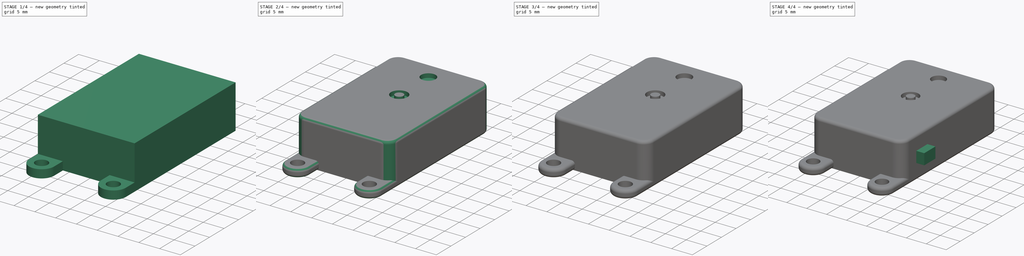
[diagram: build sequence overview — one tinted view per stage of 4, left to right]
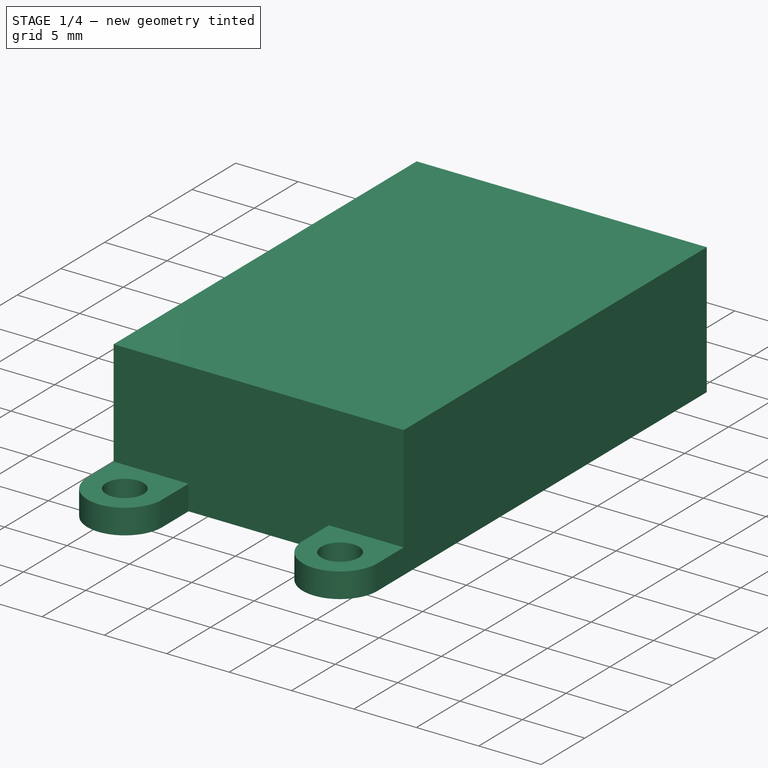
[diagram: stage 1 of 4 — iso view after this stage's code; geometry added in this stage tinted green]
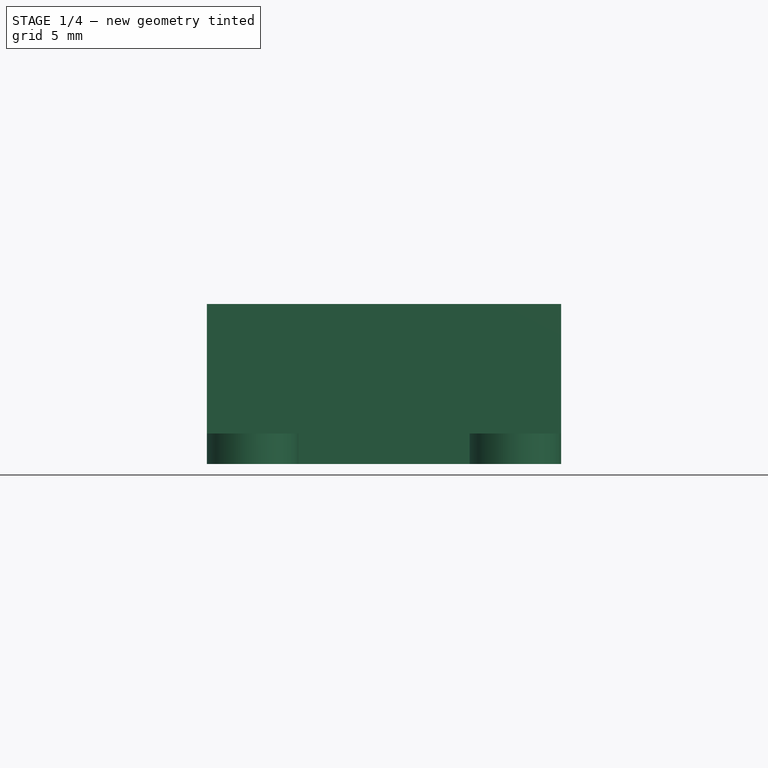
[diagram: stage 1 of 4 — front view after this stage's code; geometry added in this stage tinted green]
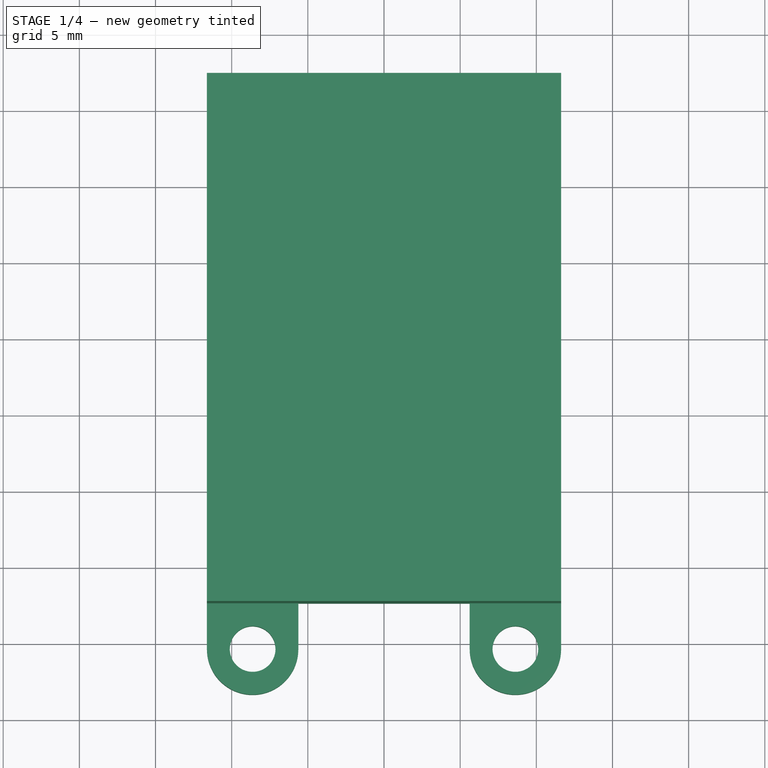
[diagram: stage 1 of 4 — top view after this stage's code; geometry added in this stage tinted green]
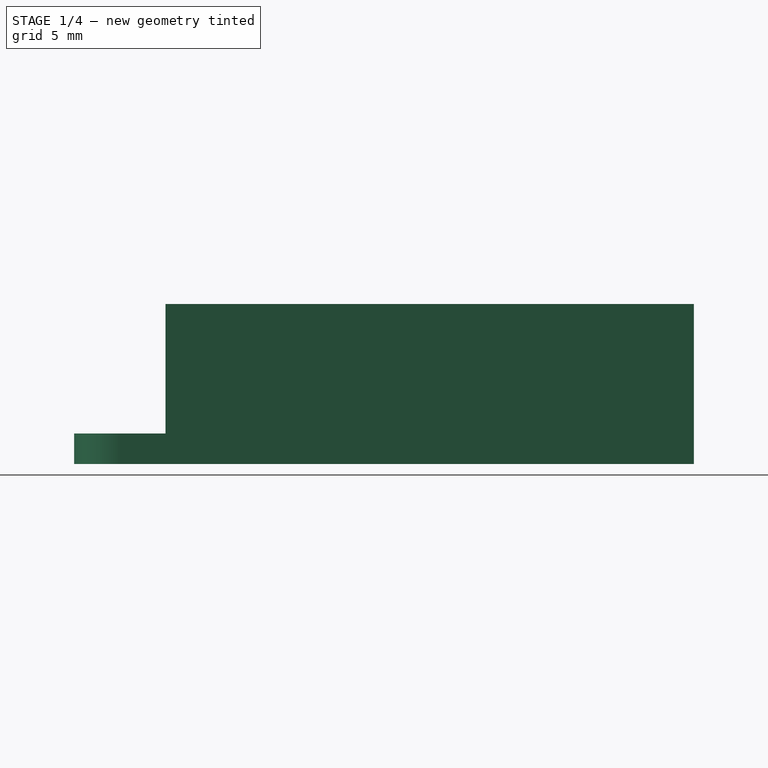
[diagram: stage 1 of 4 — right view after this stage's code; geometry added in this stage tinted green]
FCSTD DOCUMENT  (FreeCAD 1.0R39109 (Git))
Label: sipeed_a010
License: All rights reserved
LicenseURL: http://en.wikipedia.org/wiki/All_rights_reserved
objects: Sketcher::SketchObject×8, PartDesign::Pad×4, PartDesign::Pocket×3, PartDesign::Fillet×2, PartDesign::Mirrored×1, PartDesign::Body×1
note: 46 computed .brp shape members not serialized (recipe doc carries the construction recipe); baked Part::Feature solids carry a one-line shape summary decoded from their .brp

FEATURE [Sketcher::SketchObject] Sketch
  ArcFitTolerance = 1e-06
  AttachmentSupport = -> [XY_Plane]
  FullyConstrained = true
  MakeInternals = false
  MapMode = 5
  sketch-geometry (5):
    g0: LineSegment StartX=-11.625 StartY=17.34 StartZ=0 EndX=-11.625 EndY=-17.34 EndZ=0
    g1: LineSegment StartX=-11.625 StartY=-17.34 StartZ=0 EndX=11.625 EndY=-17.34 EndZ=0
    g2: LineSegment StartX=11.625 StartY=-17.34 StartZ=0 EndX=11.625 EndY=17.34 EndZ=0
    g3: LineSegment StartX=11.625 StartY=17.34 StartZ=0 EndX=-11.625 EndY=17.34 EndZ=0
    g4: GeomPoint [constr] X=0 Y=0 Z=0
  constraints (12):
    c: Coincident(g0,g1)
    c: Coincident(g1,g2)
    c: Coincident(g2,g3)
    c: Coincident(g3,g0)
    c: Vertical(g0)
    c: Vertical(g2)
    c: Horizontal(g1)
    c: Horizontal(g3)
    c: Symmetric(g2,g0,g4)
    c: Coincident(g4,g-1)
    c: DistanceX(g3,g3) = 23.25
    c: DistanceY(g2,g2) = 34.68
FEATURE [PartDesign::Pad] Pad  label="BasePad"
  Direction = (0,0,1)
  Length = 10.5
  Length2 = 10
  Profile = -> Sketch
  ReferenceAxis = -> Sketch [N_Axis]
  Refine = true
  Suppressed = false
  Type = 0
FEATURE [Sketcher::SketchObject] Sketch001
  ArcFitTolerance = 1e-06
  AttachmentSupport = -> [Pad]
  ExternalGeometry = -> [Pad]
  FullyConstrained = true
  MakeInternals = false
  MapMode = 5
  Placement = pos=(0,0,0) rot=(1,0,0;3.14159rad)
  sketch-geometry (11):
    g0: LineSegment StartX=-11.625 StartY=20.34 StartZ=0 EndX=-11.625 EndY=17.34 EndZ=0
    g1: LineSegment StartX=-11.625 StartY=17.34 StartZ=0 EndX=-5.625 EndY=17.34 EndZ=0
    g2: LineSegment StartX=-5.625 StartY=17.34 StartZ=0 EndX=-5.625 EndY=20.34 EndZ=0
    g3: LineSegment StartX=5.625 StartY=20.34 StartZ=0 EndX=5.625 EndY=17.34 EndZ=0
    g4: LineSegment StartX=5.625 StartY=17.34 StartZ=0 EndX=11.625 EndY=17.34 EndZ=0
    g5: LineSegment StartX=11.625 StartY=17.34 StartZ=0 EndX=11.625 EndY=20.34 EndZ=0
    g6: ArcOfCircle CenterX=-8.625 CenterY=20.34 CenterZ=0 NormalX=0 NormalY=0 NormalZ=1 AngleXU=0 Radius=3 StartAngle=6.69e-13 EndAngle=3.14159
    g7: ArcOfCircle CenterX=8.625 CenterY=20.34 CenterZ=0 NormalX=0 NormalY=0 NormalZ=1 AngleXU=0 Radius=3 StartAngle=0 EndAngle=3.14159
    g8: Circle CenterX=-8.625 CenterY=20.34 CenterZ=0 NormalX=0 NormalY=0 NormalZ=1 AngleXU=0 Radius=1.5
    g9: Circle CenterX=8.625 CenterY=20.34 CenterZ=0 NormalX=0 NormalY=0 NormalZ=1 AngleXU=0 Radius=1.5
    g10: GeomPoint X=8.625 Y=23.34 Z=0
  constraints (27):
    c: Coincident(g0,g-3)
    c: Vertical(g0)
    c: Coincident(g0,g1)
    c: PointOnObject(g1,g-3)
    c: Coincident(g1,g2)
    c: Vertical(g2)
    c: PointOnObject(g3,g-3)
    c: Coincident(g3,g4)
    c: Coincident(g4,g-3)
    c: Coincident(g4,g5)
    c: Vertical(g5)
    c: Vertical(g3)
    c: Tangent(g7,g3) = -1.5708
    c: Tangent(g6,g0) = -1.5708
    c: Tangent(g6,g2) = -1.5708
    c: Tangent(g5,g7) = -1.5708
    c: Equal(g7,g6)
    c: Equal(g2,g3)
    c: DistanceX(g6,g7) = 17.25
    c: DistanceY(g1,g6) = 3
    c: Coincident(g8,g6)
    c: Coincident(g9,g7)
    c: Equal(g9,g8)
    c: Radius(g8) = 1.5
    c: PointOnObject(g10,g7)
    c: Vertical(g10,g7)
    c: DistanceY(g4,g10) = 6
FEATURE [PartDesign::Pad] Pad001  label="ExtensionPad"
  BaseFeature = -> Pad
  Direction = (0,0,-1)
  Length = 2
  Length2 = 10
  Profile = -> Sketch001
  ReferenceAxis = -> Sketch001 [N_Axis]
  Refine = true
  Reversed = true
  Suppressed = false
  Type = 0
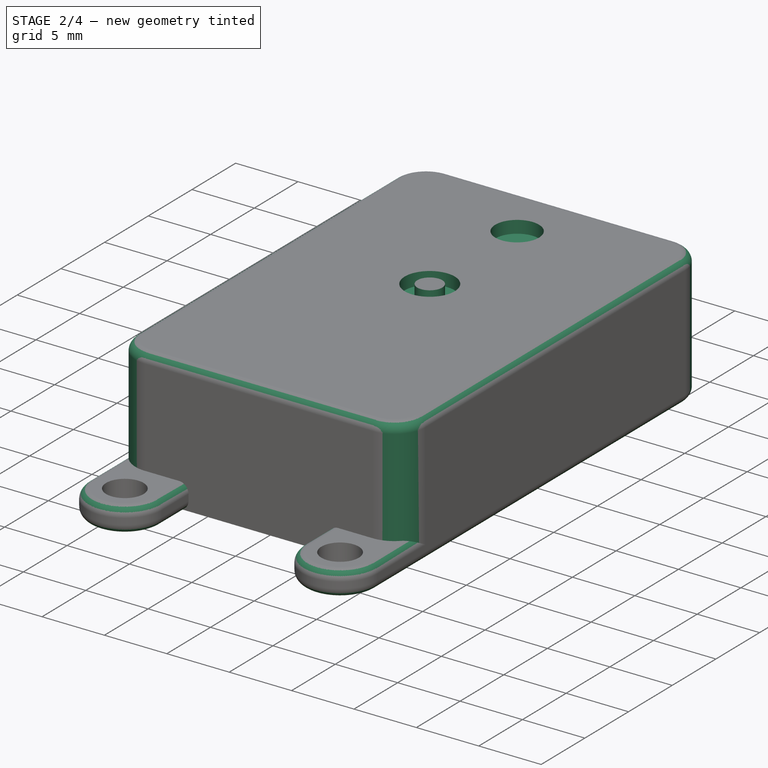
[diagram: stage 2 of 4 — iso view after this stage's code; geometry added in this stage tinted green]
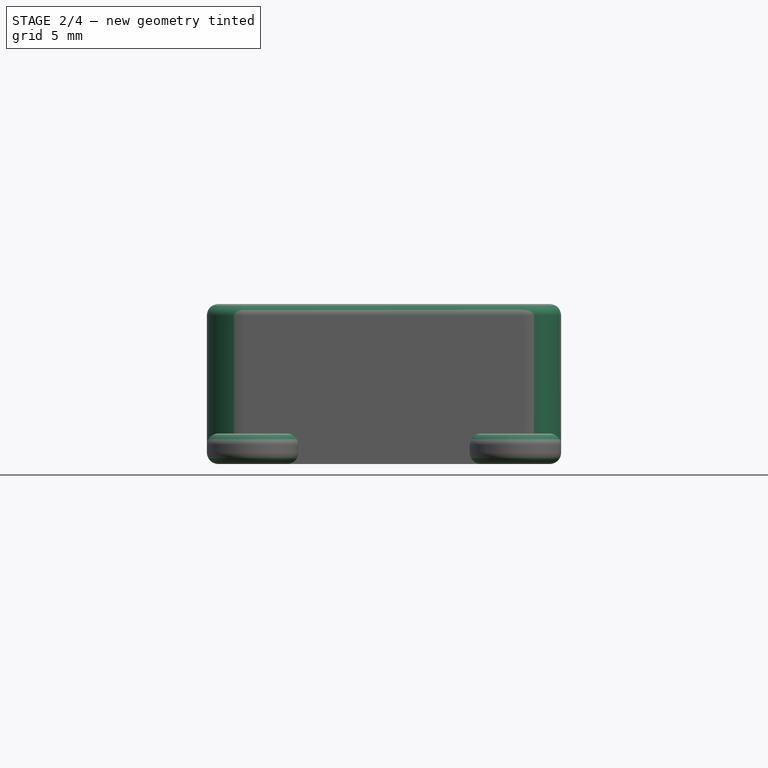
[diagram: stage 2 of 4 — front view after this stage's code; geometry added in this stage tinted green]
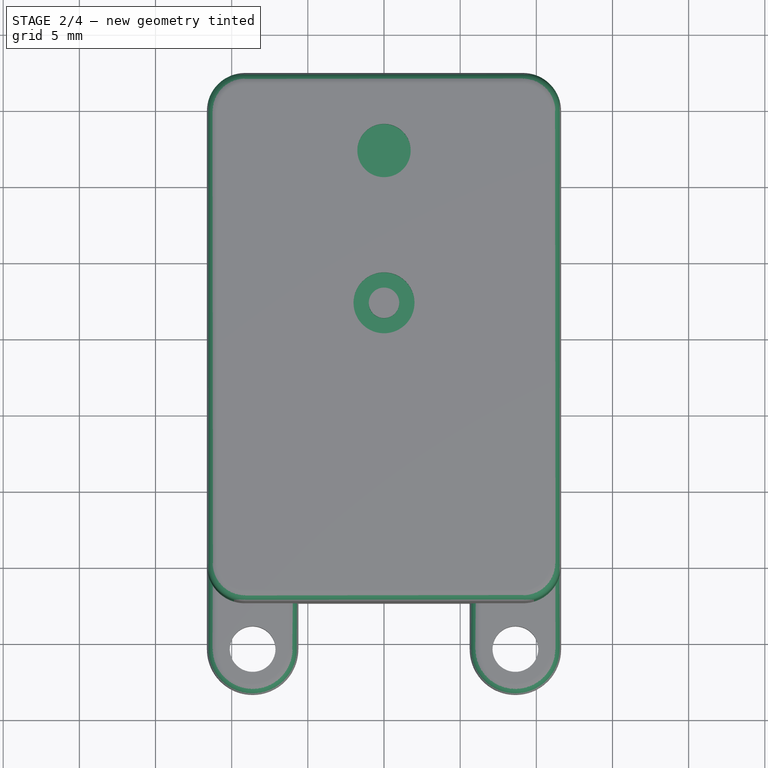
[diagram: stage 2 of 4 — top view after this stage's code; geometry added in this stage tinted green]
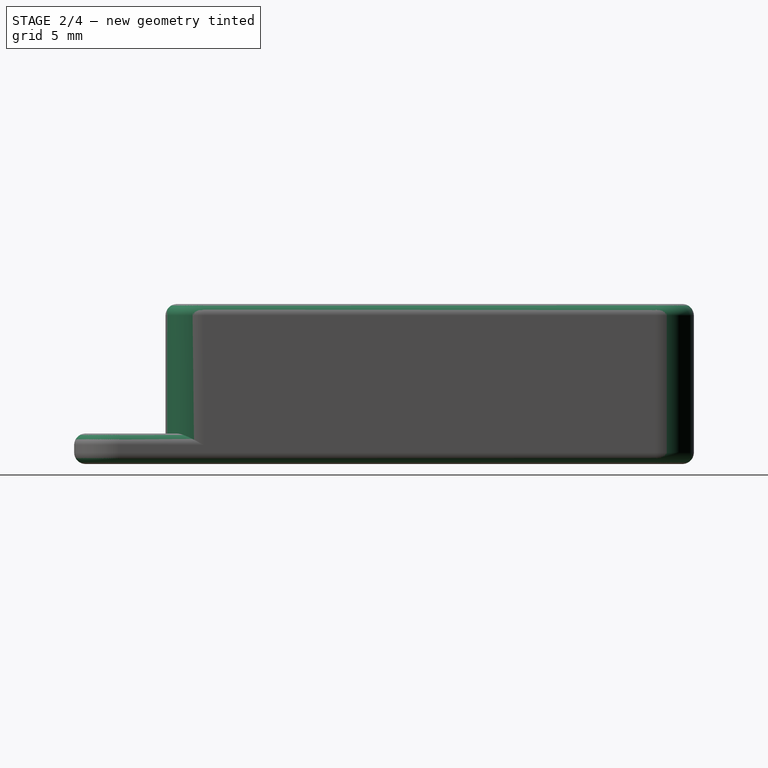
[diagram: stage 2 of 4 — right view after this stage's code; geometry added in this stage tinted green]
FEATURE [Sketcher::SketchObject] Sketch002
  ArcFitTolerance = 1e-06
  AttachmentSupport = -> [Pad001]
  ExternalGeometry = -> [Pad001]
  FullyConstrained = true
  MakeInternals = false
  MapMode = 5
  Placement = pos=(0,0,10.5) rot=(0,0,1;0rad)
  sketch-geometry (3):
    g0: Circle CenterX=0 CenterY=12.24 CenterZ=0 NormalX=0 NormalY=0 NormalZ=1 AngleXU=0 Radius=1.75
    g1: Circle CenterX=0 CenterY=2.24 CenterZ=0 NormalX=0 NormalY=0 NormalZ=1 AngleXU=0 Radius=2
    g2: Circle CenterX=0 CenterY=2.24 CenterZ=0 NormalX=0 NormalY=0 NormalZ=1 AngleXU=0 Radius=1
  constraints (8):
    c: PointOnObject(g0,g-2)
    c: PointOnObject(g1,g-2)
    c: Radius(g1) = 2
    c: Radius(g0) = 1.75
    c: DistanceY(g1,g0) = 10
    c: DistanceY(g0,g-3) = 5.1
    c: Coincident(g2,g1)
    c: Radius(g2) = 1
FEATURE [PartDesign::Pocket] Pocket  label="CamPocket"
  BaseFeature = -> Pad001
  Direction = (0,0,-1)
  Length = 1
  Length2 = 5
  Profile = -> Sketch002
  ReferenceAxis = -> Sketch002 [N_Axis]
  Refine = true
  Suppressed = false
  Type = 0
FEATURE [PartDesign::Fillet] Fillet  label="CornerFillet"
  Base = -> Pocket [Edge6,Edge8,Edge29,Edge35]
  BaseFeature = -> Pocket
  Radius = 2.5
  Refine = true
  SupportTransform = false
  Suppressed = false
  UseAllEdges = false
FEATURE [PartDesign::Fillet] Fillet001  label="BaseFillet"
  Base = -> Fillet [Edge24,Edge23,Edge4,Edge16,Edge19,Edge20,Edge21,Edge22,Edge28,Edge13,Edge12,Edge10,Edge40,Edge42,Edge43]
  BaseFeature = -> Fillet
  Radius = 0.75
  Refine = true
  SupportTransform = false
  Suppressed = false
  UseAllEdges = false
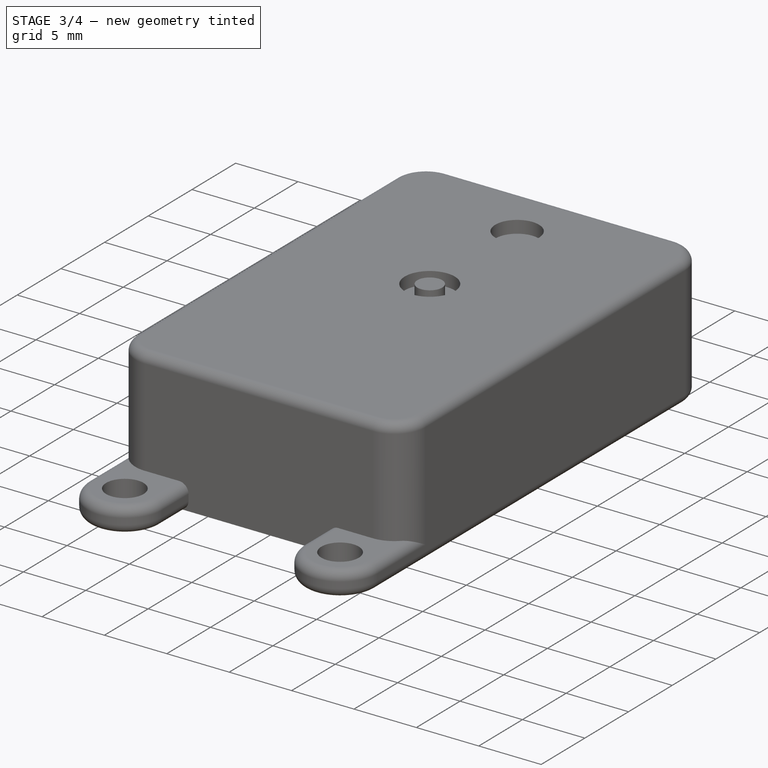
[diagram: stage 3 of 4 — iso view after this stage's code; geometry added in this stage tinted green]
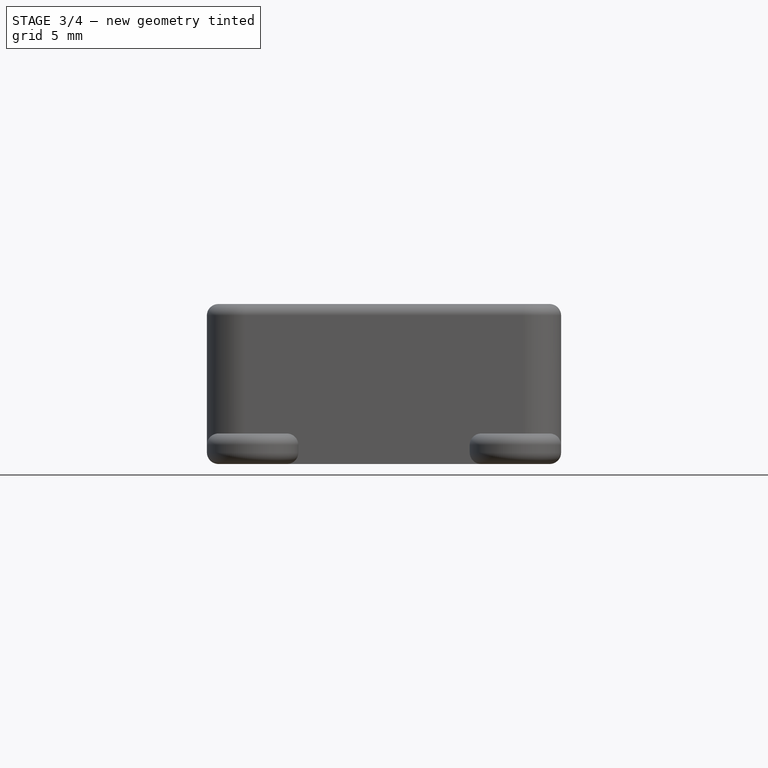
[diagram: stage 3 of 4 — front view after this stage's code; geometry added in this stage tinted green]
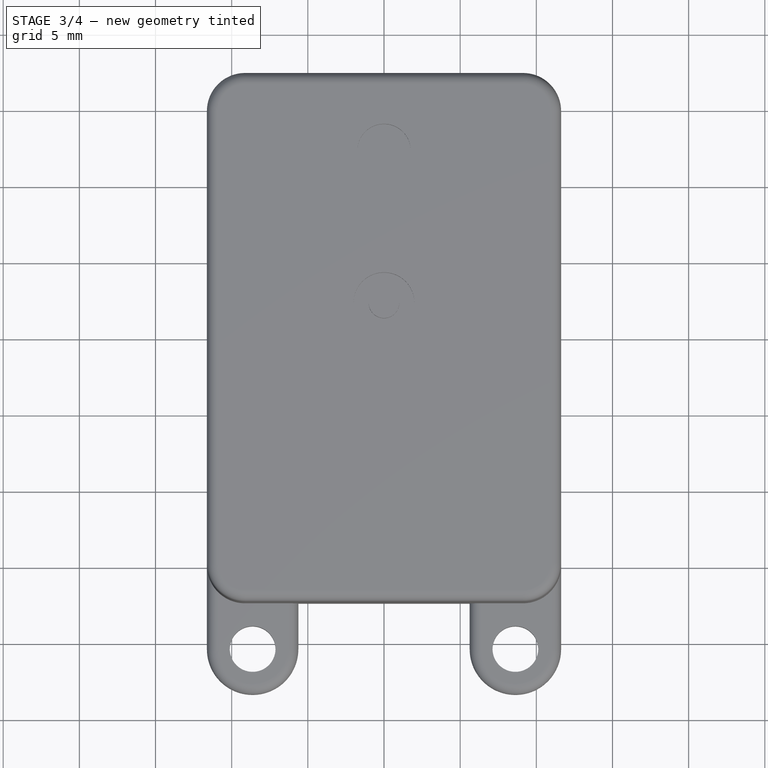
[diagram: stage 3 of 4 — top view after this stage's code; geometry added in this stage tinted green]
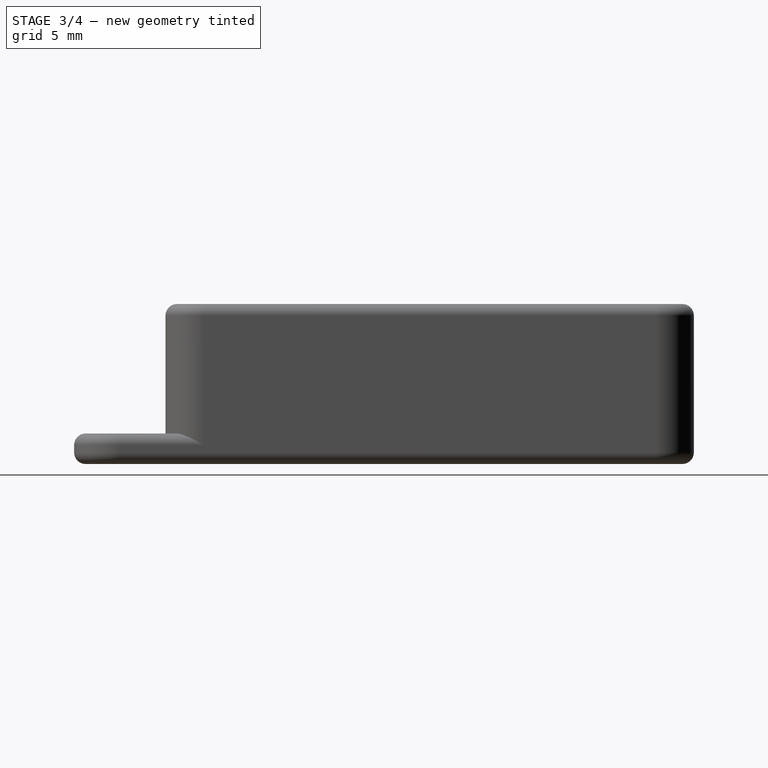
[diagram: stage 3 of 4 — right view after this stage's code; geometry added in this stage tinted green]
FEATURE [Sketcher::SketchObject] Sketch003
  ArcFitTolerance = 1e-06
  AttachmentSupport = -> [Fillet001]
  ExternalGeometry = -> [Fillet001]
  FullyConstrained = true
  MakeInternals = false
  MapMode = 5
  Placement = pos=(0,17.34,0) rot=(0,0.707107,0.707107;3.14159rad)
  sketch-geometry (35):
    g0: LineSegment StartX=-8.125 StartY=6.52 StartZ=0 EndX=-8.125 EndY=3.98 EndZ=0
    g1: LineSegment StartX=-8.125 StartY=3.98 StartZ=0 EndX=-3.045 EndY=3.98 EndZ=0
    g2: LineSegment StartX=-3.045 StartY=3.98 StartZ=0 EndX=-3.045 EndY=6.52 EndZ=0
    g3: LineSegment StartX=-3.045 StartY=6.52 StartZ=0 EndX=-8.125 EndY=6.52 EndZ=0
    g4: GeomPoint X=-8.125 Y=5.25 Z=0
    g5: GeomPoint X=-9.125 Y=5.25 Z=0
    g6: LineSegment [constr] StartX=-8.125 StartY=6.52 StartZ=0 EndX=-8.125 EndY=5.25 EndZ=0
    g7: LineSegment [constr] StartX=-8.125 StartY=5.25 StartZ=0 EndX=-6.855 EndY=5.25 EndZ=0
    g8: LineSegment [constr] StartX=-6.855 StartY=5.25 StartZ=0 EndX=-6.855 EndY=6.52 EndZ=0
    g9: LineSegment [constr] StartX=-6.855 StartY=6.52 StartZ=0 EndX=-8.125 EndY=6.52 EndZ=0
    g10: LineSegment [constr] StartX=-6.855 StartY=6.52 StartZ=0 EndX=-6.855 EndY=5.25 EndZ=0
    g11: LineSegment [constr] StartX=-6.855 StartY=5.25 StartZ=0 EndX=-5.585 EndY=5.25 EndZ=0
    g12: LineSegment [constr] StartX=-5.585 StartY=5.25 StartZ=0 EndX=-5.585 EndY=6.52 EndZ=0
    g13: LineSegment [constr] StartX=-5.585 StartY=6.52 StartZ=0 EndX=-6.855 EndY=6.52 EndZ=0
    g14: LineSegment [constr] StartX=-5.585 StartY=6.52 StartZ=0 EndX=-5.585 EndY=5.25 EndZ=0
    g15: LineSegment [constr] StartX=-5.585 StartY=5.25 StartZ=0 EndX=-4.315 EndY=5.25 EndZ=0
    g16: LineSegment [constr] StartX=-4.315 StartY=5.25 StartZ=0 EndX=-4.315 EndY=6.52 EndZ=0
    g17: LineSegment [constr] StartX=-4.315 StartY=6.52 StartZ=0 EndX=-5.585 EndY=6.52 EndZ=0
    g18: LineSegment [constr] StartX=-4.315 StartY=6.52 StartZ=0 EndX=-4.315 EndY=5.25 EndZ=0
    g19: LineSegment [constr] StartX=-4.315 StartY=5.25 StartZ=0 EndX=-3.045 EndY=5.25 EndZ=0
    g20: LineSegment [constr] StartX=-3.045 StartY=5.25 StartZ=0 EndX=-3.045 EndY=6.52 EndZ=0
    g21: LineSegment [constr] StartX=-3.045 StartY=6.52 StartZ=0 EndX=-4.315 EndY=6.52 EndZ=0
    g22: LineSegment [constr] StartX=-7.79 StartY=6.185 StartZ=0 EndX=-7.79 EndY=5.585 EndZ=0
    g23: LineSegment [constr] StartX=-7.79 StartY=5.585 StartZ=0 EndX=-7.19 EndY=5.585 EndZ=0
    g24: LineSegment [constr] StartX=-7.19 StartY=5.585 StartZ=0 EndX=-7.19 EndY=6.185 EndZ=0
    g25: LineSegment [constr] StartX=-7.19 StartY=6.185 StartZ=0 EndX=-7.79 EndY=6.185 EndZ=0
    g26: GeomPoint [constr] X=-7.49 Y=5.885 Z=0
    g27: GeomPoint [constr] X=-7.49 Y=6.52 Z=0
    g28: GeomPoint [constr] X=-8.125 Y=5.885 Z=0
    g29: ArcOfCircle CenterX=1.61 CenterY=5.25 CenterZ=0 NormalX=0 NormalY=0 NormalZ=1 AngleXU=0 Radius=1.325 StartAngle=1.5708 EndAngle=4.71239
    g30: ArcOfCircle CenterX=7.3 CenterY=5.25 CenterZ=0 NormalX=0 NormalY=0 NormalZ=1 AngleXU=0 Radius=1.325 StartAngle=4.71239 EndAngle=7.85398
    g31: LineSegment StartX=1.61 StartY=6.575 StartZ=0 EndX=7.3 EndY=6.575 EndZ=0
    g32: LineSegment StartX=1.61 StartY=3.925 StartZ=0 EndX=7.3 EndY=3.925 EndZ=0
    g33: GeomPoint X=8.625 Y=5.25 Z=0
    g34: GeomPoint X=0.285 Y=5.25 Z=0
  constraints (85):
    c: Coincident(g0,g1)
    c: Coincident(g1,g2)
    c: Coincident(g2,g3)
    c: Coincident(g3,g0)
    c: Vertical(g0)
    c: Vertical(g2)
    c: Horizontal(g1)
    c: Horizontal(g3)
    c: Symmetric(g0,g0,g4)
    c: Symmetric(g-3,g-3,g5)
    c: Horizontal(g5,g4)
    c: Coincident(g6,g7)
    c: Coincident(g7,g8)
    c: Coincident(g8,g9)
    c: Coincident(g9,g6)
    c: Vertical(g6)
    c: Vertical(g8)
    c: Horizontal(g7)
    c: Horizontal(g9)
    c: Coincident(g10,g11)
    c: Coincident(g11,g12)
    c: Coincident(g12,g13)
    c: Coincident(g13,g10)
    c: Vertical(g12)
    c: Horizontal(g11)
    c: Horizontal(g13)
    c: Coincident(g10,g8)
    c: Coincident(g14,g15)
    c: Coincident(g15,g16)
    c: Coincident(g16,g17)
    c: Coincident(g17,g14)
    c: Vertical(g16)
    c: Horizontal(g15)
    c: Horizontal(g17)
    c: Coincident(g14,g12)
    c: Coincident(g18,g19)
    c: Coincident(g19,g20)
    c: Coincident(g20,g21)
    c: Coincident(g21,g18)
    c: Vertical(g20)
    c: Horizontal(g19)
    c: Horizontal(g21)
    c: Coincident(g18,g16)
    c: Coincident(g7,g10)
    c: Coincident(g14,g11)
    c: Coincident(g15,g18)
    c: Equal(g9,g13)
    c: Equal(g13,g17)
    c: Equal(g17,g21)
    c: Equal(g20,g21)
    c: DistanceX(g21,g21) = 1.27
    c: Coincident(g22,g23)
    c: Coincident(g23,g24)
    c: Coincident(g24,g25)
    c: Coincident(g25,g22)
    c: Vertical(g22)
    c: Vertical(g24)
    c: Horizontal(g23)
    c: Horizontal(g25)
    c: Symmetric(g24,g22,g26)
    c: Equal(g24,g25)
    c: Symmetric(g6,g6,g28)
    c: Horizontal(g28,g26)
    c: Vertical(g26,g27)
    c: Symmetric(g8,g6,g27)
    c: DistanceY(g24,g24) = 0.6
    c: Vertical(g6,g0)
    c: Vertical(g20,g2)
    c: Tangent(g29,g31) = 1.5708
    c: Tangent(g29,g32) = -1.5708
    c: Tangent(g30,g31) = 1.5708
    c: Tangent(g30,g32) = -1.5708
    c: Equal(g29,g30)
    c: Horizontal(g31)
    c: PointOnObject(g33,g30)
    c: PointOnObject(g34,g29)
    c: Horizontal(g34,g29)
    c: Horizontal(g29,g33)
    c: DistanceX(g34,g33) = 8.34
    c: DistanceY(g30,g30) = 2.65
    c: Horizontal(g29,g5)
    c: DistanceX(g33,g-4) = 0.5
    c: DistanceY(g2,g2) = 2.54
    c: DistanceX(g5,g0) = 1
    c: PointOnObject(g8,g3)
FEATURE [PartDesign::Pocket] Pocket001  label="PortsPocket"
  BaseFeature = -> Fillet001
  Direction = (0,-1,2e-16)
  Length = 5
  Length2 = 5
  Profile = -> Sketch003
  ReferenceAxis = -> Sketch003 [N_Axis]
  Refine = true
  Suppressed = false
  Type = 0
FEATURE [Sketcher::SketchObject] Sketch004
  ArcFitTolerance = 1e-06
  AttachmentSupport = -> [Pocket001]
  ExternalGeometry = -> [Pocket001]
  FullyConstrained = true
  MakeInternals = false
  MapMode = 5
  Placement = pos=(0,12.34,0) rot=(0,0.707107,0.707107;3.14159rad)
  sketch-geometry (37):
    g0: LineSegment StartX=-7.79 StartY=6.185 StartZ=0 EndX=-7.79 EndY=5.585 EndZ=0
    g1: LineSegment StartX=-7.79 StartY=5.585 StartZ=0 EndX=-7.19 EndY=5.585 EndZ=0
    g2: LineSegment StartX=-7.19 StartY=5.585 StartZ=0 EndX=-7.19 EndY=6.185 EndZ=0
    g3: LineSegment StartX=-7.19 StartY=6.185 StartZ=0 EndX=-7.79 EndY=6.185 EndZ=0
    g4: GeomPoint [constr] X=-7.49 Y=5.885 Z=0
    g5: LineSegment StartX=-6.52 StartY=6.185 StartZ=0 EndX=-6.52 EndY=5.585 EndZ=0
    g6: LineSegment StartX=-6.52 StartY=5.585 StartZ=0 EndX=-5.92 EndY=5.585 EndZ=0
    g7: LineSegment StartX=-5.92 StartY=5.585 StartZ=0 EndX=-5.92 EndY=6.185 EndZ=0
    g8: LineSegment StartX=-5.92 StartY=6.185 StartZ=0 EndX=-6.52 EndY=6.185 EndZ=0
    g9: GeomPoint [constr] X=-6.22 Y=5.885 Z=0
    g10: LineSegment StartX=-5.25 StartY=6.185 StartZ=0 EndX=-5.25 EndY=5.585 EndZ=0
    g11: LineSegment StartX=-5.25 StartY=5.585 StartZ=0 EndX=-4.65 EndY=5.585 EndZ=0
    g12: LineSegment StartX=-4.65 StartY=5.585 StartZ=0 EndX=-4.65 EndY=6.185 EndZ=0
    g13: LineSegment StartX=-4.65 StartY=6.185 StartZ=0 EndX=-5.25 EndY=6.185 EndZ=0
    g14: GeomPoint [constr] X=-4.95 Y=5.885 Z=0
    g15: LineSegment StartX=-3.98 StartY=6.185 StartZ=0 EndX=-3.98 EndY=5.585 EndZ=0
    g16: LineSegment StartX=-3.98 StartY=5.585 StartZ=0 EndX=-3.38 EndY=5.585 EndZ=0
    g17: LineSegment StartX=-3.38 StartY=5.585 StartZ=0 EndX=-3.38 EndY=6.185 EndZ=0
    g18: LineSegment StartX=-3.38 StartY=6.185 StartZ=0 EndX=-3.98 EndY=6.185 EndZ=0
    g19: GeomPoint [constr] X=-3.68 Y=5.885 Z=0
    g20: LineSegment [constr] StartX=-3.045 StartY=6.52 StartZ=0 EndX=-3.045 EndY=5.25 EndZ=0
    g21: LineSegment [constr] StartX=-3.045 StartY=5.25 StartZ=0 EndX=-3.045 EndY=3.98 EndZ=0
    g22: GeomPoint X=-3.045 Y=5.885 Z=0
    g23: LineSegment [constr] StartX=-3.045 StartY=6.52 StartZ=0 EndX=-4.315 EndY=6.52 EndZ=0
    g24: LineSegment [constr] StartX=-4.315 StartY=6.52 StartZ=0 EndX=-5.585 EndY=6.52 EndZ=0
    g25: LineSegment [constr] StartX=-5.585 StartY=6.52 StartZ=0 EndX=-6.855 EndY=6.52 EndZ=0
    g26: LineSegment [constr] StartX=-6.855 StartY=6.52 StartZ=0 EndX=-8.125 EndY=6.52 EndZ=0
    g27: GeomPoint X=-3.68 Y=6.52 Z=0
    g28: GeomPoint X=-4.95 Y=6.52 Z=0
    g29: GeomPoint X=-6.22 Y=6.52 Z=0
    g30: GeomPoint X=-7.49 Y=6.52 Z=0
    g31: LineSegment StartX=1.11 StartY=5.55 StartZ=0 EndX=1.11 EndY=4.95 EndZ=0
    g32: LineSegment StartX=1.11 StartY=4.95 StartZ=0 EndX=7.8 EndY=4.95 EndZ=0
    g33: LineSegment StartX=7.8 StartY=4.95 StartZ=0 EndX=7.8 EndY=5.55 EndZ=0
    g34: LineSegment StartX=7.8 StartY=5.55 StartZ=0 EndX=1.11 EndY=5.55 EndZ=0
    g35: GeomPoint [constr] X=4.455 Y=5.25 Z=0
    g36: GeomPoint X=4.455 Y=6.575 Z=0
  constraints (86):
    c: Coincident(g0,g1)
    c: Coincident(g1,g2)
    c: Coincident(g2,g3)
    c: Coincident(g3,g0)
    c: Vertical(g0)
    c: Vertical(g2)
    c: Horizontal(g1)
    c: Horizontal(g3)
    c: Symmetric(g2,g0,g4)
    c: Coincident(g5,g6)
    c: Coincident(g6,g7)
    c: Coincident(g7,g8)
    c: Coincident(g8,g5)
    c: Vertical(g5)
    c: Vertical(g7)
    c: Horizontal(g6)
    c: Horizontal(g8)
    c: Symmetric(g7,g5,g9)
    c: Coincident(g10,g11)
    c: Coincident(g11,g12)
    c: Coincident(g12,g13)
    c: Coincident(g13,g10)
    c: Vertical(g10)
    c: Vertical(g12)
    c: Horizontal(g11)
    c: Horizontal(g13)
    c: Symmetric(g12,g10,g14)
    c: Coincident(g15,g16)
    c: Coincident(g16,g17)
    c: Coincident(g17,g18)
    c: Coincident(g18,g15)
    c: Vertical(g15)
    c: Vertical(g17)
    c: Horizontal(g16)
    c: Horizontal(g18)
    c: Symmetric(g17,g15,g19)
    c: Coincident(g20,g-4)
    c: Symmetric(g-4,g-4,g20)
    c: Coincident(g21,g20)
    c: Coincident(g21,g-4)
    c: Symmetric(g20,g20,g22)
    c: Horizontal(g22,g19)
    c: Horizontal(g19,g14)
    c: Horizontal(g14,g9)
    c: Horizontal(g9,g4)
    c: Equal(g2,g3)
    c: Equal(g3,g5)
    c: Equal(g5,g8)
    c: Equal(g8,g10)
    c: Equal(g10,g13)
    c: Equal(g13,g15)
    c: Equal(g15,g18)
    c: DistanceY(g17,g17) = 0.6
    c: Coincident(g20,g23)
    c: PointOnObject(g23,g-3)
    c: Coincident(g23,g24)
    c: PointOnObject(g24,g-3)
    c: Coincident(g24,g25)
    c: PointOnObject(g25,g-3)
    c: Coincident(g25,g26)
    c: Coincident(g26,g-3)
    c: Equal(g24,g25)
    c: Equal(g25,g26)
    c: Equal(g26,g23)
    c: Symmetric(g23,g23,g27)
    c: Symmetric(g24,g24,g28)
    c: Symmetric(g25,g25,g29)
    c: Symmetric(g26,g26,g30)
    c: Vertical(g4,g30)
    c: Vertical(g9,g29)
    c: Vertical(g14,g28)
    c: Vertical(g19,g27)
    c: Coincident(g31,g32)
    c: Coincident(g32,g33)
    c: Coincident(g33,g34)
    c: Coincident(g34,g31)
    c: Vertical(g31)
    c: Vertical(g33)
    c: Horizontal(g32)
    c: Horizontal(g34)
    c: Symmetric(g33,g31,g35)
    c: DistanceY(g33,g33) = 0.6
    c: Horizontal(g35,g-7)
    c: DistanceX(g34,g34) = 6.69
    c: Symmetric(g-6,g-6,g36)
    c: Vertical(g35,g36)
FEATURE [PartDesign::Pad] Pad002  label="ConnectorsPad"
  BaseFeature = -> Pocket001
  Direction = (0,1,-2e-16)
  Length = 4
  Length2 = 10
  Profile = -> Sketch004
  ReferenceAxis = -> Sketch004 [N_Axis]
  Refine = true
  Suppressed = false
  Type = 0
FEATURE [Sketcher::SketchObject] Sketch005
  ArcFitTolerance = 1e-06
  AttachmentSupport = -> [Pad002]
  ExternalGeometry = -> [Pad002]
  FullyConstrained = true
  MakeInternals = false
  MapMode = 5
  Placement = pos=(0,0,0) rot=(1,0,0;3.14159rad)
  sketch-geometry (5):
    g0: LineSegment StartX=-9.875 StartY=15.59 StartZ=0 EndX=-9.875 EndY=-15.59 EndZ=0
    g1: LineSegment StartX=-9.875 StartY=-15.59 StartZ=0 EndX=9.875 EndY=-15.59 EndZ=0
    g2: LineSegment StartX=9.875 StartY=-15.59 StartZ=0 EndX=9.875 EndY=15.59 EndZ=0
    g3: LineSegment StartX=9.875 StartY=15.59 StartZ=0 EndX=-9.875 EndY=15.59 EndZ=0
    g4: GeomPoint [constr] X=0 Y=0 Z=0
  constraints (12):
    c: Coincident(g0,g1)
    c: Coincident(g1,g2)
    c: Coincident(g2,g3)
    c: Coincident(g3,g0)
    c: Vertical(g0)
    c: Vertical(g2)
    c: Horizontal(g1)
    c: Horizontal(g3)
    c: Symmetric(g2,g0,g4)
    c: Coincident(g4,g-1)
    c: DistanceX(g1,g-3) = 1
    c: DistanceY(g-4,g1) = 1
FEATURE [PartDesign::Pocket] Pocket002  label="ScreenPad"
  BaseFeature = -> Pad002
  Direction = (0,0,1)
  Length = 0.5
  Length2 = 5
  Profile = -> Sketch005
  ReferenceAxis = -> Sketch005 [N_Axis]
  Refine = true
  Suppressed = false
  Type = 0
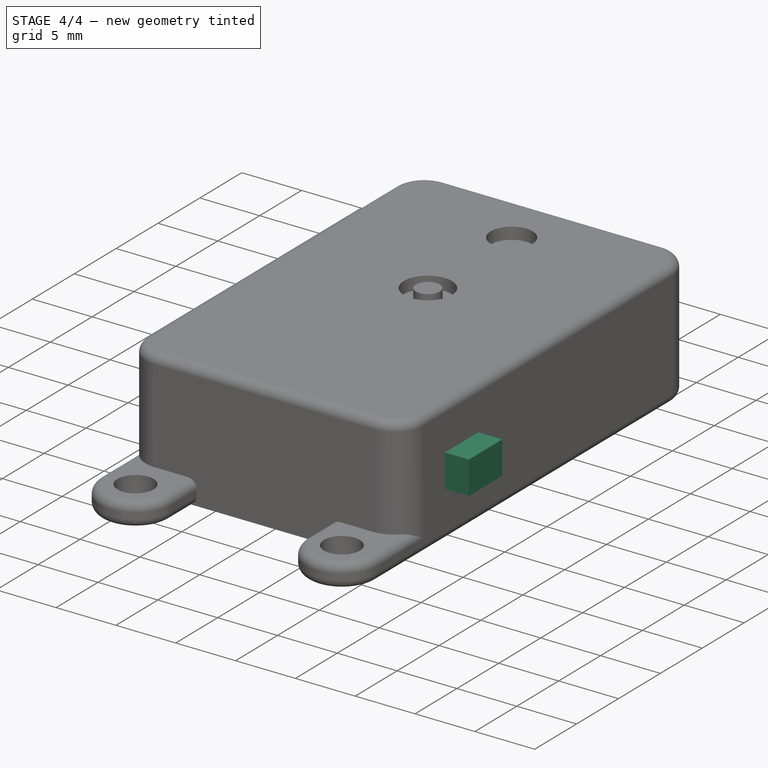
[diagram: stage 4 of 4 — iso view after this stage's code; geometry added in this stage tinted green]
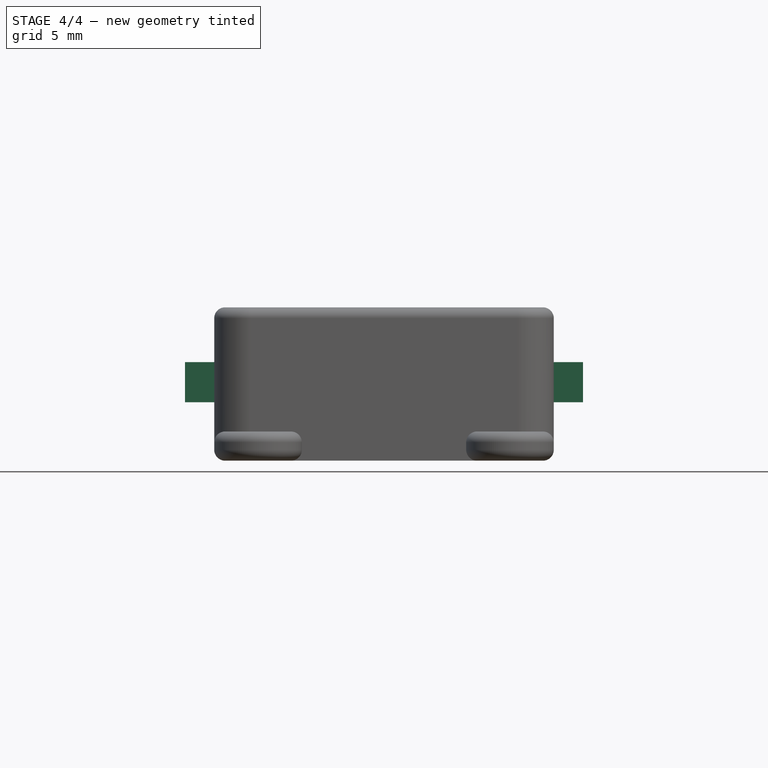
[diagram: stage 4 of 4 — front view after this stage's code; geometry added in this stage tinted green]
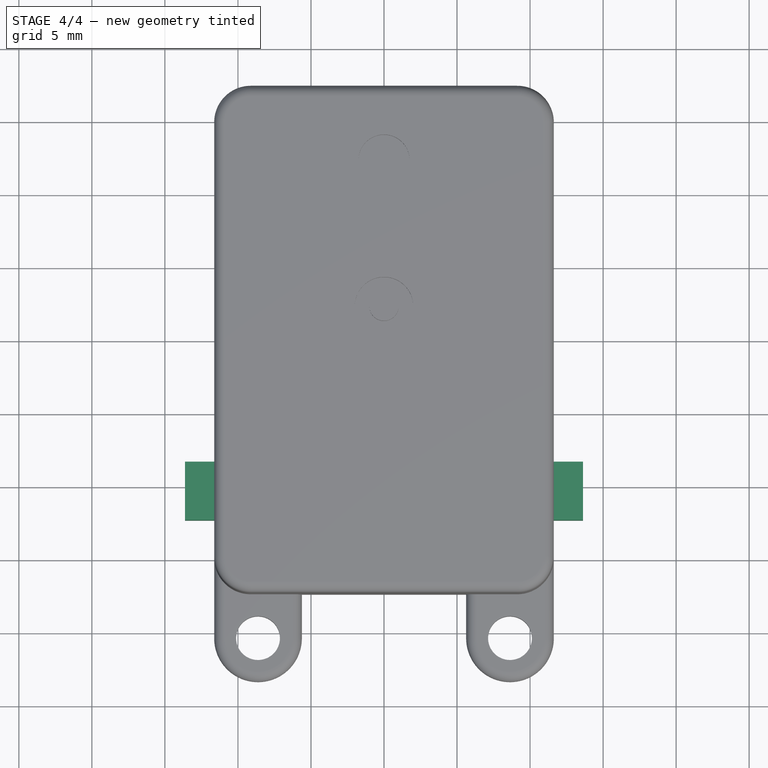
[diagram: stage 4 of 4 — top view after this stage's code; geometry added in this stage tinted green]
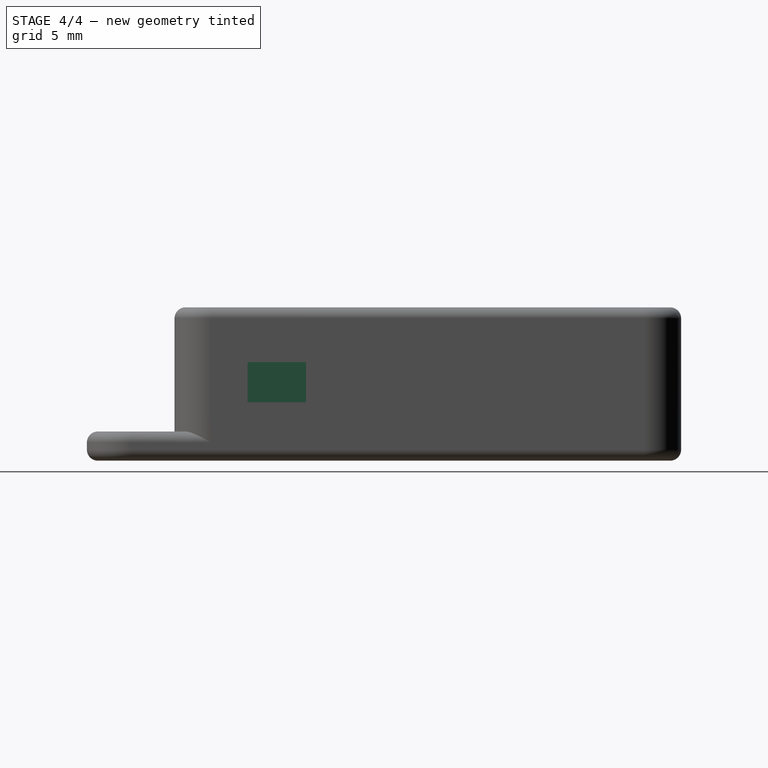
[diagram: stage 4 of 4 — right view after this stage's code; geometry added in this stage tinted green]
FEATURE [Sketcher::SketchObject] Sketch006
  ArcFitTolerance = 1e-06
  AttachmentSupport = -> [Pocket002]
  ExternalGeometry = -> [Pocket002]
  FullyConstrained = true
  MakeInternals = false
  MapMode = 5
  Placement = pos=(11.625,-1.1e-14,-2.76e-14) rot=(0.57735,0.57735,0.57735;2.0944rad)
  sketch-geometry (6):
    g0: LineSegment StartX=-12.34 StartY=6.75 StartZ=0 EndX=-12.34 EndY=4 EndZ=0
    g1: LineSegment StartX=-12.34 StartY=4 StartZ=0 EndX=-8.34 EndY=4 EndZ=0
    g2: LineSegment StartX=-8.34 StartY=4 StartZ=0 EndX=-8.34 EndY=6.75 EndZ=0
    g3: LineSegment StartX=-8.34 StartY=6.75 StartZ=0 EndX=-12.34 EndY=6.75 EndZ=0
    g4: GeomPoint [constr] X=-10.34 Y=5.375 Z=0
    g5: GeomPoint X=14.84 Y=5.25 Z=0
  constraints (14):
    c: Coincident(g0,g1)
    c: Coincident(g1,g2)
    c: Coincident(g2,g3)
    c: Coincident(g3,g0)
    c: Vertical(g0)
    c: Vertical(g2)
    c: Horizontal(g1)
    c: Horizontal(g3)
    c: Symmetric(g2,g0,g4)
    c: Symmetric(g-3,g-3,g5)
    c: DistanceX(g1,g1) = 4
    c: DistanceY(g2,g2) = 2.75
    c: DistanceX(g-4,g0) = 2.5
    c: DistanceY(g-3,g2) = 6
FEATURE [PartDesign::Pad] Pad003  label="LateralGrabPad"
  BaseFeature = -> Pocket002
  Direction = (1,1e-16,-2.3e-15)
  Length = 2
  Length2 = 10
  Profile = -> Sketch006
  ReferenceAxis = -> Sketch006 [N_Axis]
  Refine = true
  Suppressed = false
  Type = 0
FEATURE [PartDesign::Mirrored] Mirrored  label="LateralGrabMirror"
  BaseFeature = -> Pad003
  MirrorPlane = -> YZ_Plane
  Originals = -> [Pad003]
  Refine = true
  Suppressed = false
  TransformMode = 0
FEATURE [Sketcher::SketchObject] Sketch007  label="HollowReferences"
  ArcFitTolerance = 1e-06
  AttachmentSupport = -> [Mirrored]
  ExternalGeometry = -> [Mirrored]
  FullyConstrained = true
  MakeInternals = false
  MapMode = 5
  Placement = pos=(0,0,2) rot=(0,0,1;0rad)
  sketch-geometry (2):
    g0: LineSegment [constr] StartX=-8.625 StartY=-20.34 StartZ=0 EndX=8.625 EndY=-20.34 EndZ=0
    g1: GeomPoint [constr] X=0 Y=-20.34 Z=0
  constraints (5):
    c: Coincident(g0,g-5)
    c: Coincident(g0,g-4)
    c: Symmetric(g0,g0,g1)
    c: DistanceX(g0,g0) = 17.25
    c: Radius(g-4) = 1.5
FEATURE [PartDesign::Body] Body  label="MaixsensA010"
  AllowCompound = false
  Group = -> [Sketch,Pad,Sketch001,Pad001,Sketch002,Pocket,Fillet,Fillet001,Sketch003,Pocket001,Sketch004,Pad002,Sketch005,Pocket002,Sketch006,Pad003,Mirrored,Sketch007]
  Origin = -> Origin
  Tip = -> Mirrored
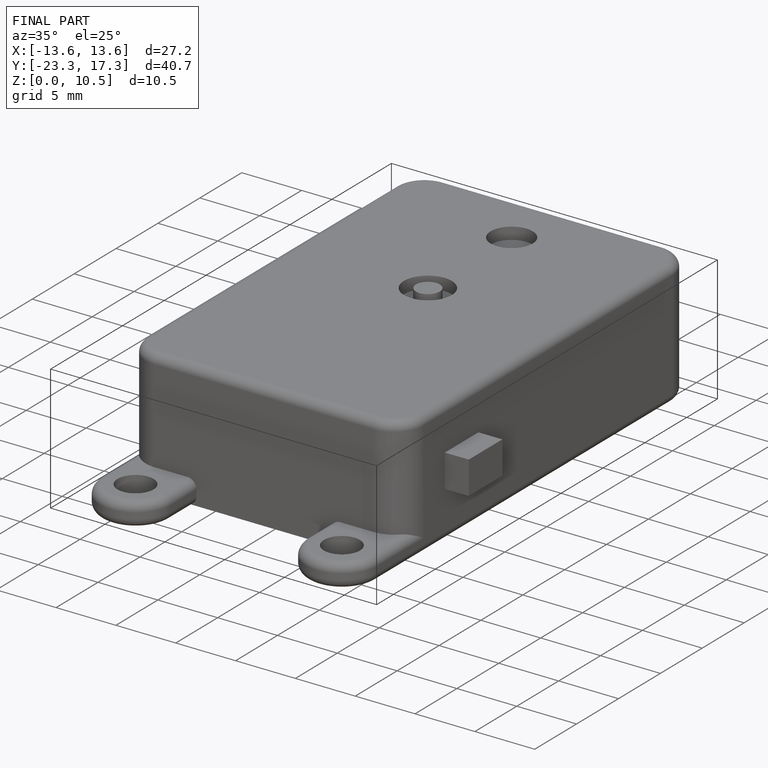
[diagram: finished part — iso view with bounding-box wireframe]
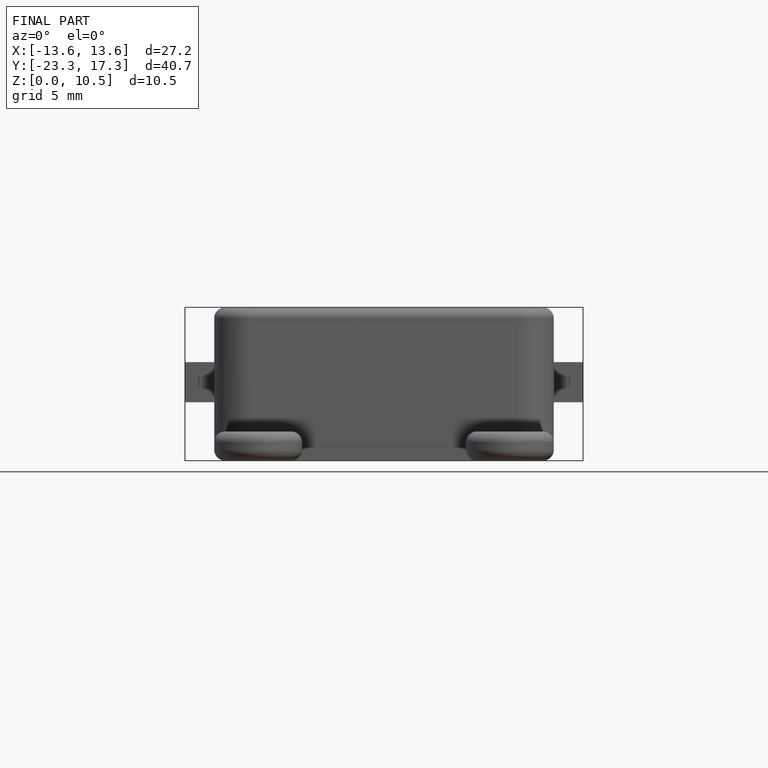
[diagram: finished part — front view with bounding-box wireframe]
